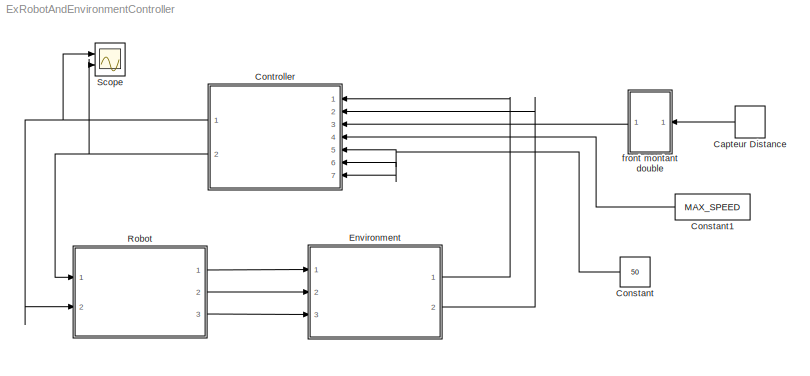
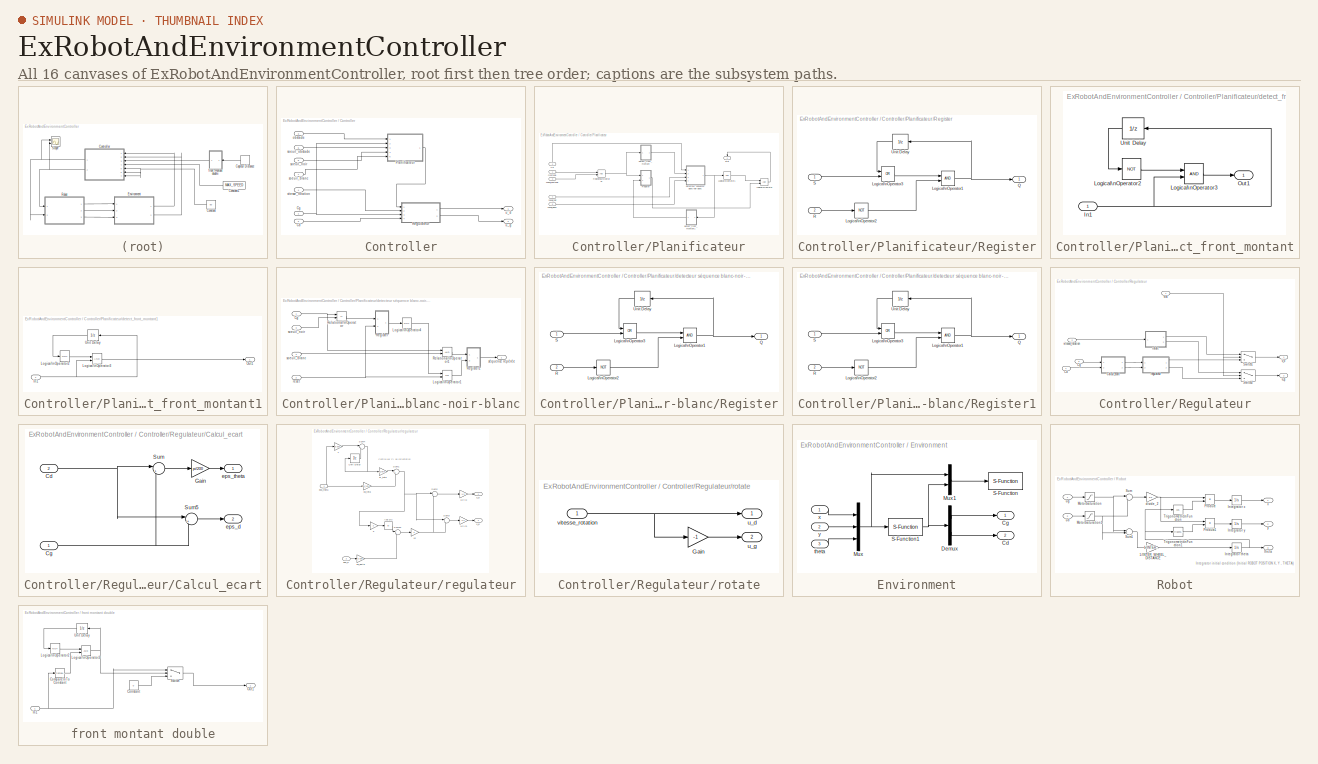
[diagram: thumbnail index - all 16 canvases of the model, root first then tree order]
MODEL ExRobotAndEnvironmentController
KIND model
BLOCK [DiscretePulseGenerator] Capteur Distance
  Amplitude = 100
  Period = 5
  PhaseDelay = 3
  Ports = [0, 1]
  PulseType = Time based
  PulseWidth = 5
  SID = 498
BLOCK [Constant] Constant
  SID = 766
  Value = 50
BLOCK [Constant] Constant1
  SID = 778
  Value = MAX_SPEED
BLOCK [SubSystem] Controller
  Ports = [7, 2]
  RequestExecContextInheritance = off
  SID = 147
BLOCK [Inport] Controller/Cd
  IconDisplay = Port number
  OutDataTypeStr = double
  Port = 2
  SID = 459
BLOCK [Inport] Controller/Cg
  IconDisplay = Port number
  OutDataTypeStr = double
  SID = 458
BLOCK [SubSystem] Controller/Planificateur
  Ports = [5, 1]
  RequestExecContextInheritance = off
  SID = 749
BLOCK [Inport] Controller/Planificateur/Cg
  IconDisplay = Port number
  OutDataTypeStr = double
  Port = 2
  SID = 751
BLOCK [Logic] Controller/Planificateur/Logical\nOperator
  AllPortsSameDT = off
  OutDataTypeStr = boolean
  Ports = [2, 1]
  SID = 680
BLOCK [Logic] Controller/Planificateur/Logical\nOperator1
  AllPortsSameDT = off
  Operator = NOT
  OutDataTypeStr = boolean
  Ports = [1, 1]
  SID = 679
BLOCK [Inport] Controller/Planificateur/Obstacle
  IconDisplay = Port number
  OutDataTypeStr = double
  SID = 750
BLOCK [SubSystem] Controller/Planificateur/Register
  Ports = [2, 1]
  RequestExecContextInheritance = off
  SID = 587
BLOCK [Logic] Controller/Planificateur/Register/Logical\nOperator1
  AllPortsSameDT = off
  OutDataTypeStr = boolean
  Ports = [2, 1]
  SID = 590
BLOCK [Logic] Controller/Planificateur/Register/Logical\nOperator2
  AllPortsSameDT = off
  Operator = NOT
  OutDataTypeStr = boolean
  Ports = [1, 1]
  SID = 591
BLOCK [Logic] Controller/Planificateur/Register/Logical\nOperator3
  AllPortsSameDT = off
  Operator = OR
  OutDataTypeStr = boolean
  Ports = [2, 1]
  SID = 592
BLOCK [Outport] Controller/Planificateur/Register/Q
  IconDisplay = Port number
  SID = 594
BLOCK [Inport] Controller/Planificateur/Register/R
  IconDisplay = Port number
  Port = 2
  SID = 589
BLOCK [Inport] Controller/Planificateur/Register/S
  IconDisplay = Port number
  SID = 588
BLOCK [UnitDelay] Controller/Planificateur/Register/Unit Delay
  InputProcessing = Elements as channels (sample based)
  SID = 593
  SampleTime = -1
BLOCK [RelationalOperator] Controller/Planificateur/Relational\nOperator
  InputSameDT = off
  OutDataTypeStr = boolean
  Ports = [2, 1]
  SID = 761
BLOCK [SubSystem] Controller/Planificateur/detect_front_montant
  Ports = [1, 1]
  RequestExecContextInheritance = off
  SID = 683
BLOCK [Inport] Controller/Planificateur/detect_front_montant/In1
  IconDisplay = Port number
  SID = 684
BLOCK [Logic] Controller/Planificateur/detect_front_montant/Logical\nOperator2
  AllPortsSameDT = off
  Operator = NOT
  OutDataTypeStr = boolean
  Ports = [1, 1]
  SID = 685
BLOCK [Logic] Controller/Planificateur/detect_front_montant/Logical\nOperator3
  AllPortsSameDT = off
  OutDataTypeStr = boolean
  Ports = [2, 1]
  SID = 686
BLOCK [Outport] Controller/Planificateur/detect_front_montant/Out1
  IconDisplay = Port number
  SID = 688
BLOCK [UnitDelay] Controller/Planificateur/detect_front_montant/Unit Delay
  InputProcessing = Elements as channels (sample based)
  SID = 687
  SampleTime = -1
BLOCK [SubSystem] Controller/Planificateur/detect_front_montant1
  Ports = [1, 1]
  RequestExecContextInheritance = off
  SID = 689
BLOCK [Inport] Controller/Planificateur/detect_front_montant1/In1
  IconDisplay = Port number
  SID = 690
BLOCK [Logic] Controller/Planificateur/detect_front_montant1/Logical\nOperator2
  AllPortsSameDT = off
  Operator = NOT
  OutDataTypeStr = boolean
  Ports = [1, 1]
  SID = 691
BLOCK [Logic] Controller/Planificateur/detect_front_montant1/Logical\nOperator3
  AllPortsSameDT = off
  OutDataTypeStr = boolean
  Ports = [2, 1]
  SID = 692
BLOCK [Outport] Controller/Planificateur/detect_front_montant1/Out1
  IconDisplay = Port number
  SID = 694
BLOCK [UnitDelay] Controller/Planificateur/detect_front_montant1/Unit Delay
  InputProcessing = Elements as channels (sample based)
  SID = 693
  SampleTime = -1
BLOCK [SubSystem] Controller/Planificateur/detecteur séquence blanc-noir-blanc
  Ports = [4, 1]
  RequestExecContextInheritance = off
  SID = 642
BLOCK [Inport] Controller/Planificateur/detecteur séquence blanc-noir-blanc/Cg
  IconDisplay = Port number
  SID = 643
BLOCK [Logic] Controller/Planificateur/detecteur séquence blanc-noir-blanc/Logical\nOperator1
  AllPortsSameDT = off
  Operator = OR
  OutDataTypeStr = boolean
  Ports = [2, 1]
  SID = 645
BLOCK [Logic] Controller/Planificateur/detecteur séquence blanc-noir-blanc/Logical\nOperator4
  AllPortsSameDT = off
  Operator = NOT
  OutDataTypeStr = boolean
  Ports = [1, 1]
  SID = 647
BLOCK [SubSystem] Controller/Planificateur/detecteur séquence blanc-noir-blanc/Register
  Ports = [2, 1]
  RequestExecContextInheritance = off
  SID = 701
BLOCK [Logic] Controller/Planificateur/detecteur séquence blanc-noir-blanc/Register/Logical\nOperator1
  AllPortsSameDT = off
  OutDataTypeStr = boolean
  Ports = [2, 1]
  SID = 704
BLOCK [Logic] Controller/Planificateur/detecteur séquence blanc-noir-blanc/Register/Logical\nOperator2
  AllPortsSameDT = off
  Operator = NOT
  OutDataTypeStr = boolean
  Ports = [1, 1]
  SID = 705
BLOCK [Logic] Controller/Planificateur/detecteur séquence blanc-noir-blanc/Register/Logical\nOperator3
  AllPortsSameDT = off
  Operator = OR
  OutDataTypeStr = boolean
  Ports = [2, 1]
  SID = 706
BLOCK [Outport] Controller/Planificateur/detecteur séquence blanc-noir-blanc/Register/Q
  IconDisplay = Port number
  SID = 708
BLOCK [Inport] Controller/Planificateur/detecteur séquence blanc-noir-blanc/Register/R
  IconDisplay = Port number
  OutDataTypeStr = boolean
  Port = 2
  SID = 703
BLOCK [Inport] Controller/Planificateur/detecteur séquence blanc-noir-blanc/Register/S
  IconDisplay = Port number
  OutDataTypeStr = boolean
  SID = 702
BLOCK [UnitDelay] Controller/Planificateur/detecteur séquence blanc-noir-blanc/Register/Unit Delay
  InputProcessing = Elements as channels (sample based)
  SID = 707
  SampleTime = -1
BLOCK [SubSystem] Controller/Planificateur/detecteur séquence blanc-noir-blanc/Register1
  Ports = [2, 1]
  RequestExecContextInheritance = off
  SID = 714
BLOCK [Logic] Controller/Planificateur/detecteur séquence blanc-noir-blanc/Register1/Logical\nOperator1
  AllPortsSameDT = off
  OutDataTypeStr = boolean
  Ports = [2, 1]
  SID = 717
BLOCK [Logic] Controller/Planificateur/detecteur séquence blanc-noir-blanc/Register1/Logical\nOperator2
  AllPortsSameDT = off
  Operator = NOT
  OutDataTypeStr = boolean
  Ports = [1, 1]
  SID = 718
BLOCK [Logic] Controller/Planificateur/detecteur séquence blanc-noir-blanc/Register1/Logical\nOperator3
  AllPortsSameDT = off
  Operator = OR
  OutDataTypeStr = boolean
  Ports = [2, 1]
  SID = 719
BLOCK [Outport] Controller/Planificateur/detecteur séquence blanc-noir-blanc/Register1/Q
  IconDisplay = Port number
  SID = 721
BLOCK [Inport] Controller/Planificateur/detecteur séquence blanc-noir-blanc/Register1/R
  IconDisplay = Port number
  OutDataTypeStr = boolean
  Port = 2
  SID = 716
BLOCK [Inport] Controller/Planificateur/detecteur séquence blanc-noir-blanc/Register1/S
  IconDisplay = Port number
  OutDataTypeStr = boolean
  SID = 715
BLOCK [UnitDelay] Controller/Planificateur/detecteur séquence blanc-noir-blanc/Register1/Unit Delay
  InputProcessing = Elements as channels (sample based)
  SID = 720
  SampleTime = -1
BLOCK [RelationalOperator] Controller/Planificateur/detecteur séquence blanc-noir-blanc/Relational\nOperator
  InputSameDT = off
  Operator = <=
  OutDataTypeStr = boolean
  Ports = [2, 1]
  SID = 764
BLOCK [RelationalOperator] Controller/Planificateur/detecteur séquence blanc-noir-blanc/Relational\nOperator1
  InputSameDT = off
  OutDataTypeStr = boolean
  Ports = [2, 1]
  SID = 765
BLOCK [Inport] Controller/Planificateur/detecteur séquence blanc-noir-blanc/reset
  IconDisplay = Port number
  OutDataTypeStr = boolean
  Port = 2
  SID = 644
BLOCK [Inport] Controller/Planificateur/detecteur séquence blanc-noir-blanc/soeuil_blanc
  IconDisplay = Port number
  Port = 4
  SID = 763
BLOCK [Inport] Controller/Planificateur/detecteur séquence blanc-noir-blanc/soeuil_noir
  IconDisplay = Port number
  Port = 3
  SID = 762
BLOCK [Outport] Controller/Planificateur/detecteur séquence blanc-noir-blanc/séquence repérée
  IconDisplay = Port number
  OutDataTypeStr = boolean
  SID = 676
BLOCK [Outport] Controller/Planificateur/etat
  IconDisplay = Port number
  SID = 752
BLOCK [Inport] Controller/Planificateur/soeuil_blanc
  IconDisplay = Port number
  OutDataTypeStr = double
  Port = 5
  SID = 757
BLOCK [Inport] Controller/Planificateur/soeuil_noir
  IconDisplay = Port number
  OutDataTypeStr = double
  Port = 4
  SID = 756
BLOCK [Inport] Controller/Planificateur/soeuil_obstacle
  IconDisplay = Port number
  OutDataTypeStr = double
  Port = 3
  SID = 755
BLOCK [SubSystem] Controller/Regulateur
  Ports = [4, 2]
  RequestExecContextInheritance = off
  SID = 770
BLOCK [SubSystem] Controller/Regulateur/Calcul_ecart
  Ports = [2, 2]
  RequestExecContextInheritance = off
  SID = 480
BLOCK [Inport] Controller/Regulateur/Calcul_ecart/Cd
  IconDisplay = Port number
  Port = 2
  SID = 483
BLOCK [Inport] Controller/Regulateur/Calcul_ecart/Cg
  IconDisplay = Port number
  SID = 482
BLOCK [Gain] Controller/Regulateur/Calcul_ecart/Gain
  Gain = pi/200
  OutDataTypeStr = Inherit: Inherit via internal rule
  ParamDataTypeStr = Inherit: Inherit via internal rule
  SID = 463
  SaturateOnIntegerOverflow = off
BLOCK [Sum] Controller/Regulateur/Calcul_ecart/Sum
  IconShape = round
  InputSameDT = off
  Inputs = |+-
  OutDataTypeStr = Inherit: Inherit via internal rule
  Ports = [2, 1]
  SID = 464
  SaturateOnIntegerOverflow = off
BLOCK [Sum] Controller/Regulateur/Calcul_ecart/Sum5
  IconShape = round
  InputSameDT = off
  Inputs = |++
  OutDataTypeStr = Inherit: Inherit via internal rule
  Ports = [2, 1]
  SID = 470
  SaturateOnIntegerOverflow = off
BLOCK [Outport] Controller/Regulateur/Calcul_ecart/eps_d
  IconDisplay = Port number
  Port = 2
  SID = 484
BLOCK [Outport] Controller/Regulateur/Calcul_ecart/eps_theta
  IconDisplay = Port number
  SID = 481
BLOCK [Inport] Controller/Regulateur/Cd
  IconDisplay = Port number
  OutDataTypeStr = double
  Port = 4
  SID = 774
BLOCK [Inport] Controller/Regulateur/Cg
  IconDisplay = Port number
  OutDataTypeStr = double
  Port = 3
  SID = 773
BLOCK [Switch] Controller/Regulateur/Switch1
  Criteria = u2 ~= 0
  InputSameDT = off
  SID = 537
  SaturateOnIntegerOverflow = off
BLOCK [Switch] Controller/Regulateur/Switch2
  Criteria = u2 ~= 0
  InputSameDT = off
  SID = 538
  SaturateOnIntegerOverflow = off
BLOCK [Inport] Controller/Regulateur/etat
  IconDisplay = Port number
  OutDataTypeStr = boolean
  SID = 771
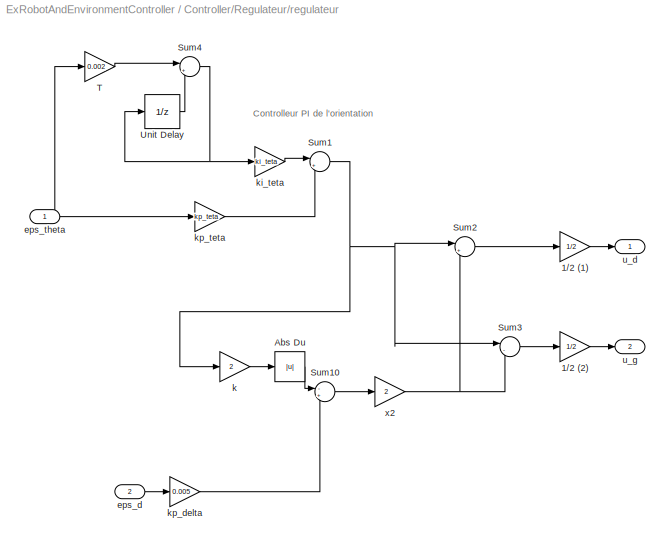
BLOCK [SubSystem] Controller/Regulateur/regulateur
  Ports = [2, 2]
  RequestExecContextInheritance = off
  SID = 485
BLOCK [Gain] Controller/Regulateur/regulateur/1//2  (1)
  Gain = 1/2
  SID = 460
BLOCK [Gain] Controller/Regulateur/regulateur/1//2 (2)
  Gain = 1/2
  SID = 461
BLOCK [Abs] Controller/Regulateur/regulateur/Abs Du
  SID = 462
BLOCK [Sum] Controller/Regulateur/regulateur/Sum1
  IconShape = round
  InputSameDT = off
  Inputs = |++
  OutDataTypeStr = Inherit: Inherit via internal rule
  Ports = [2, 1]
  SID = 465
BLOCK [Sum] Controller/Regulateur/regulateur/Sum10
  IconShape = round
  InputSameDT = off
  Inputs = -+
  OutDataTypeStr = Inherit: Inherit via internal rule
  Ports = [2, 1]
  SID = 466
BLOCK [Sum] Controller/Regulateur/regulateur/Sum2
  IconShape = round
  InputSameDT = off
  Inputs = |++
  OutDataTypeStr = Inherit: Inherit via internal rule
  Ports = [2, 1]
  SID = 467
BLOCK [Sum] Controller/Regulateur/regulateur/Sum3
  IconShape = round
  InputSameDT = off
  Inputs = |-+
  OutDataTypeStr = Inherit: Inherit via internal rule
  Ports = [2, 1]
  SID = 468
BLOCK [Sum] Controller/Regulateur/regulateur/Sum4
  IconShape = round
  InputSameDT = off
  Inputs = |++
  OutDataTypeStr = Inherit: Inherit via internal rule
  Ports = [2, 1]
  SID = 469
  SaturateOnIntegerOverflow = off
BLOCK [Gain] Controller/Regulateur/regulateur/T
  Gain = 0.002
  OutDataTypeStr = Inherit: Inherit via internal rule
  ParamDataTypeStr = Inherit: Inherit via internal rule
  SID = 471
  SaturateOnIntegerOverflow = off
BLOCK [UnitDelay] Controller/Regulateur/regulateur/Unit Delay
  SID = 472
  SampleTime = -1
BLOCK [Inport] Controller/Regulateur/regulateur/eps_d
  IconDisplay = Port number
  Port = 2
  SID = 489
BLOCK [Inport] Controller/Regulateur/regulateur/eps_theta
  IconDisplay = Port number
  SID = 487
BLOCK [Gain] Controller/Regulateur/regulateur/k
  Gain = 2
  SID = 473
BLOCK [Gain] Controller/Regulateur/regulateur/ki_teta
  Gain = ki_teta
  SID = 474
BLOCK [Gain] Controller/Regulateur/regulateur/kp_delta
  Gain = 0.005
  OutDataTypeStr = Inherit: Inherit via internal rule
  ParamDataTypeStr = Inherit: Inherit via internal rule
  SID = 475
  SaturateOnIntegerOverflow = off
BLOCK [Gain] Controller/Regulateur/regulateur/kp_teta
  Gain = kp_teta
  SID = 476
BLOCK [Outport] Controller/Regulateur/regulateur/u_d
  IconDisplay = Port number
  SID = 486
BLOCK [Outport] Controller/Regulateur/regulateur/u_g
  IconDisplay = Port number
  Port = 2
  SID = 488
BLOCK [Gain] Controller/Regulateur/regulateur/x2
  Gain = 2
  SID = 477
BLOCK [SubSystem] Controller/Regulateur/rotate
  Ports = [1, 2]
  RequestExecContextInheritance = off
  SID = 553
BLOCK [Gain] Controller/Regulateur/rotate/Gain
  Gain = -1
  OutDataTypeStr = Inherit: Inherit via internal rule
  ParamDataTypeStr = Inherit: Inherit via internal rule
  SID = 560
  SaturateOnIntegerOverflow = off
BLOCK [Outport] Controller/Regulateur/rotate/u_d
  IconDisplay = Port number
  SID = 555
BLOCK [Outport] Controller/Regulateur/rotate/u_g
  IconDisplay = Port number
  Port = 2
  SID = 557
BLOCK [Inport] Controller/Regulateur/rotate/vitesse_rotation
  IconDisplay = Port number
  SID = 753
BLOCK [Outport] Controller/Regulateur/u_d
  IconDisplay = Port number
  SID = 775
BLOCK [Outport] Controller/Regulateur/u_g
  IconDisplay = Port number
  Port = 2
  SID = 776
BLOCK [Inport] Controller/Regulateur/vitesse_rotation
  IconDisplay = Port number
  OutDataTypeStr = double
  Port = 2
  SID = 772
BLOCK [Inport] Controller/obstacle
  IconDisplay = Port number
  OutDataTypeStr = double
  Port = 3
  SID = 534
BLOCK [Inport] Controller/soeuil_blanc
  IconDisplay = Port number
  OutDataTypeStr = double
  Port = 7
  SID = 760
BLOCK [Inport] Controller/soeuil_noir
  IconDisplay = Port number
  OutDataTypeStr = double
  Port = 6
  SID = 759
BLOCK [Inport] Controller/soeuil_obstacle
  IconDisplay = Port number
  OutDataTypeStr = double
  Port = 5
  SID = 758
BLOCK [Outport] Controller/u_d
  IconDisplay = Port number
  SID = 478
BLOCK [Outport] Controller/u_g
  IconDisplay = Port number
  Port = 2
  SID = 479
BLOCK [Inport] Controller/vitesse_rotation
  IconDisplay = Port number
  OutDataTypeStr = double
  Port = 4
  SID = 754
BLOCK [SubSystem] Environment
  Ports = [3, 2]
  RequestExecContextInheritance = off
  SID = 192
BLOCK [Outport] Environment/Cd
  IconDisplay = Port number
  Port = 2
  SID = 222
BLOCK [Outport] Environment/Cg
  IconDisplay = Port number
  SID = 221
BLOCK [Demux] Environment/Demux
  DisplayOption = bar
  Outputs = 2
  Ports = [1, 2]
  SID = 224
BLOCK [Mux] Environment/Mux
  DisplayOption = bar
  Inputs = 3
  Ports = [3, 1]
  SID = 225
BLOCK [Mux] Environment/Mux1
  DisplayOption = bar
  Inputs = 2
  Ports = [2, 1]
  SID = 226
BLOCK [S-Function] Environment/S-Function
  EnableBusSupport = off
  FunctionName = robot_anim
  Parameters = ts_anim,Env,Robot,RobotInit
  Ports = [1]
  SID = 227
BLOCK [S-Function] Environment/S-Function1
  EnableBusSupport = off
  FunctionName = sensors
  Parameters = ts,Env,Robot
  Ports = [1, 1]
  SID = 228
BLOCK [Inport] Environment/theta
  IconDisplay = Port number
  Port = 3
  SID = 223
BLOCK [Inport] Environment/x
  IconDisplay = Port number
  SID = 193
BLOCK [Inport] Environment/y
  IconDisplay = Port number
  Port = 2
  SID = 194
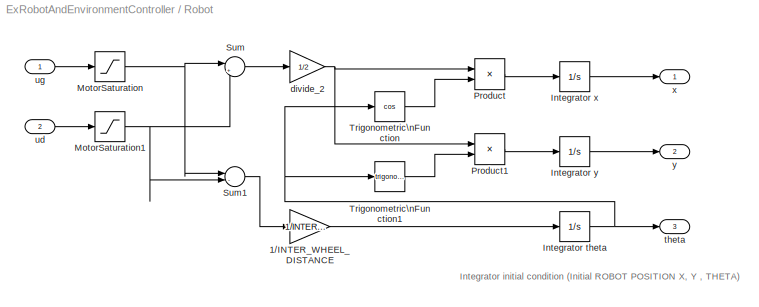
BLOCK [SubSystem] Robot
  Ports = [2, 3]
  RequestExecContextInheritance = off
  SID = 337
BLOCK [Gain] Robot/1//INTER_WHEEL_DISTANCE
  Gain = 1/INTER_WHEEL_DISTANCE
  OutDataTypeStr = Inherit: Inherit via internal rule
  ParamDataTypeStr = Inherit: Inherit via internal rule
  SID = 340
  SaturateOnIntegerOverflow = off
BLOCK [Integrator] Robot/Integrator theta
  InitialCondition = INITIAL_ROBOT_POS_THETA
  Ports = [1, 1]
  SID = 341
BLOCK [Integrator] Robot/Integrator x
  InitialCondition = INITIAL_ROBOT_POS_X
  Ports = [1, 1]
  SID = 342
BLOCK [Integrator] Robot/Integrator y
  InitialCondition = INITIAL_ROBOT_POS_Y
  Ports = [1, 1]
  SID = 343
BLOCK [Saturate] Robot/MotorSaturation
  InputPortMap = u0
  LowerLimit = -MAX_SPEED
  Ports = [1, 1]
  SID = 344
  UpperLimit = MAX_SPEED
BLOCK [Saturate] Robot/MotorSaturation1
  InputPortMap = u0
  LowerLimit = -MAX_SPEED
  Ports = [1, 1]
  SID = 345
  UpperLimit = MAX_SPEED
BLOCK [Product] Robot/Product
  InputSameDT = off
  OutDataTypeStr = Inherit: Inherit via internal rule
  Ports = [2, 1]
  SID = 346
  SaturateOnIntegerOverflow = off
BLOCK [Product] Robot/Product1
  InputSameDT = off
  OutDataTypeStr = Inherit: Inherit via internal rule
  Ports = [2, 1]
  SID = 347
  SaturateOnIntegerOverflow = off
BLOCK [Sum] Robot/Sum
  IconShape = round
  InputSameDT = off
  Inputs = |++
  OutDataTypeStr = Inherit: Inherit via internal rule
  Ports = [2, 1]
  SID = 348
  SaturateOnIntegerOverflow = off
BLOCK [Sum] Robot/Sum1
  IconShape = round
  InputSameDT = off
  Inputs = |-+
  OutDataTypeStr = Inherit: Inherit via internal rule
  Ports = [2, 1]
  SID = 349
  SaturateOnIntegerOverflow = off
BLOCK [Trigonometry] Robot/Trigonometric\nFunction
  Operator = cos
  Ports = [1, 1]
  SID = 350
BLOCK [Trigonometry] Robot/Trigonometric\nFunction1
  Ports = [1, 1]
  SID = 351
BLOCK [Gain] Robot/divide_2
  Gain = 1/2
  OutDataTypeStr = Inherit: Inherit via internal rule
  ParamDataTypeStr = Inherit: Inherit via internal rule
  SID = 352
  SaturateOnIntegerOverflow = off
BLOCK [Outport] Robot/theta
  IconDisplay = Port number
  Port = 3
  SID = 355
BLOCK [Inport] Robot/ud
  IconDisplay = Port number
  Port = 2
  SID = 339
BLOCK [Inport] Robot/ug
  IconDisplay = Port number
  SID = 338
BLOCK [Outport] Robot/x
  IconDisplay = Port number
  SID = 353
BLOCK [Outport] Robot/y
  IconDisplay = Port number
  Port = 2
  SID = 354
BLOCK [Scope] Scope
  Floating = off
  NumInputPorts = 2
  Ports = [2]
  SID = 777
  ShowLegends = off
  YMax = 1~1
  YMin = 0~0
BLOCK [SubSystem] front montant double
  Ports = [1, 1]
  RequestExecContextInheritance = off
  SID = 735
BLOCK [Reference] front montant double/Compare\nTo Constant  REF=simulink/Logic and Bit\nOperations/Compare\nTo Constant
  OutDataTypeStr = boolean
  Ports = [1, 1]
  SID = 742
  SourceBlock = simulink/Logic and Bit\nOperations/Compare\nTo Constant
  SourceType = Compare To Constant
  ZeroCross = on
  const = 50
  relop = >
BLOCK [Constant] front montant double/Constant
  SID = 744
  Value = 0
BLOCK [Inport] front montant double/In1
  IconDisplay = Port number
  SID = 736
BLOCK [Logic] front montant double/Logical\nOperator2
  AllPortsSameDT = off
  Operator = NOT
  OutDataTypeStr = boolean
  Ports = [1, 1]
  SID = 737
BLOCK [Logic] front montant double/Logical\nOperator3
  AllPortsSameDT = off
  OutDataTypeStr = boolean
  Ports = [2, 1]
  SID = 738
BLOCK [Outport] front montant double/Out1
  IconDisplay = Port number
  OutDataTypeStr = double
  SID = 740
BLOCK [Switch] front montant double/Switch
  Criteria = u2 ~= 0
  InputSameDT = off
  SID = 743
  SaturateOnIntegerOverflow = off
BLOCK [UnitDelay] front montant double/Unit Delay
  InputProcessing = Elements as channels (sample based)
  SID = 739
  SampleTime = -1
ANNOTATION Controller/Regulateur/regulateur: Controlleur PI de l'orientation
ANNOTATION Robot: Integrator initial condition (Initial ROBOT POSITION X, Y , THETA)
LINE Capteur Distance:1 -> front montant double:1
LINE Constant1:1 -> Controller:4
NET Constant:1 -> Controller:5, Controller:6, Controller:7
LINE Controller/Cd:1 -> Controller/Regulateur:4
NET Controller/Cg:1 -> Controller/Planificateur:2, Controller/Regulateur:3
LINE Controller/Planificateur/Cg:1 -> Controller/Planificateur/detecteur séquence blanc-noir-blanc:1
LINE Controller/Planificateur/Logical\nOperator1:1 -> Controller/Planificateur/Logical\nOperator:1
LINE Controller/Planificateur/Logical\nOperator:1 -> Controller/Planificateur/etat:1
LINE Controller/Planificateur/Obstacle:1 -> Controller/Planificateur/Relational\nOperator:1
NET Controller/Planificateur/Register/Logical\nOperator1:1 -> Controller/Planificateur/Register/Q:1, Controller/Planificateur/Register/Unit Delay:1
LINE Controller/Planificateur/Register/Logical\nOperator2:1 -> Controller/Planificateur/Register/Logical\nOperator1:2
LINE Controller/Planificateur/Register/Logical\nOperator3:1 -> Controller/Planificateur/Register/Logical\nOperator1:1
LINE Controller/Planificateur/Register/R:1 -> Controller/Planificateur/Register/Logical\nOperator2:1
LINE Controller/Planificateur/Register/S:1 -> Controller/Planificateur/Register/Logical\nOperator3:2
LINE Controller/Planificateur/Register/Unit Delay:1 -> Controller/Planificateur/Register/Logical\nOperator3:1
LINE Controller/Planificateur/Register:1 -> Controller/Planificateur/Logical\nOperator:2
NET Controller/Planificateur/Relational\nOperator:1 -> Controller/Planificateur/Register:1, Controller/Planificateur/detect_front_montant:1
NET Controller/Planificateur/detect_front_montant/In1:1 -> Controller/Planificateur/detect_front_montant/Logical\nOperator3:2, Controller/Planificateur/detect_front_montant/Unit Delay:1
LINE Controller/Planificateur/detect_front_montant/Logical\nOperator2:1 -> Controller/Planificateur/detect_front_montant/Logical\nOperator3:1
LINE Controller/Planificateur/detect_front_montant/Logical\nOperator3:1 -> Controller/Planificateur/detect_front_montant/Out1:1
LINE Controller/Planificateur/detect_front_montant/Unit Delay:1 -> Controller/Planificateur/detect_front_montant/Logical\nOperator2:1
NET Controller/Planificateur/detect_front_montant1/In1:1 -> Controller/Planificateur/detect_front_montant1/Logical\nOperator3:2, Controller/Planificateur/detect_front_montant1/Unit Delay:1
LINE Controller/Planificateur/detect_front_montant1/Logical\nOperator2:1 -> Controller/Planificateur/detect_front_montant1/Logical\nOperator3:1
LINE Controller/Planificateur/detect_front_montant1/Logical\nOperator3:1 -> Controller/Planificateur/detect_front_montant1/Out1:1
LINE Controller/Planificateur/detect_front_montant1/Unit Delay:1 -> Controller/Planificateur/detect_front_montant1/Logical\nOperator2:1
LINE Controller/Planificateur/detect_front_montant1:1 -> Controller/Planificateur/Register:2
LINE Controller/Planificateur/detect_front_montant:1 -> Controller/Planificateur/detecteur séquence blanc-noir-blanc:2
NET Controller/Planificateur/detecteur séquence blanc-noir-blanc/Cg:1 -> Controller/Planificateur/detecteur séquence blanc-noir-blanc/Relational\nOperator1:1, Controller/Planificateur/detecteur séquence blanc-noir-blanc/Relational\nOperator:1
LINE Controller/Planificateur/detecteur séquence blanc-noir-blanc/Logical\nOperator1:1 -> Controller/Planificateur/detecteur séquence blanc-noir-blanc/Register1:2
LINE Controller/Planificateur/detecteur séquence blanc-noir-blanc/Logical\nOperator4:1 -> Controller/Planificateur/detecteur séquence blanc-noir-blanc/Logical\nOperator1:1
NET Controller/Planificateur/detecteur séquence blanc-noir-blanc/Register/Logical\nOperator1:1 -> Controller/Planificateur/detecteur séquence blanc-noir-blanc/Register/Q:1, Controller/Planificateur/detecteur séquence blanc-noir-blanc/Register/Unit Delay:1
LINE Controller/Planificateur/detecteur séquence blanc-noir-blanc/Register/Logical\nOperator2:1 -> Controller/Planificateur/detecteur séquence blanc-noir-blanc/Register/Logical\nOperator1:2
LINE Controller/Planificateur/detecteur séquence blanc-noir-blanc/Register/Logical\nOperator3:1 -> Controller/Planificateur/detecteur séquence blanc-noir-blanc/Register/Logical\nOperator1:1
LINE Controller/Planificateur/detecteur séquence blanc-noir-blanc/Register/R:1 -> Controller/Planificateur/detecteur séquence blanc-noir-blanc/Register/Logical\nOperator2:1
LINE Controller/Planificateur/detecteur séquence blanc-noir-blanc/Register/S:1 -> Controller/Planificateur/detecteur séquence blanc-noir-blanc/Register/Logical\nOperator3:2
LINE Controller/Planificateur/detecteur séquence blanc-noir-blanc/Register/Unit Delay:1 -> Controller/Planificateur/detecteur séquence blanc-noir-blanc/Register/Logical\nOperator3:1
NET Controller/Planificateur/detecteur séquence blanc-noir-blanc/Register1/Logical\nOperator1:1 -> Controller/Planificateur/detecteur séquence blanc-noir-blanc/Register1/Q:1, Controller/Planificateur/detecteur séquence blanc-noir-blanc/Register1/Unit Delay:1
LINE Controller/Planificateur/detecteur séquence blanc-noir-blanc/Register1/Logical\nOperator2:1 -> Controller/Planificateur/detecteur séquence blanc-noir-blanc/Register1/Logical\nOperator1:2
LINE Controller/Planificateur/detecteur séquence blanc-noir-blanc/Register1/Logical\nOperator3:1 -> Controller/Planificateur/detecteur séquence blanc-noir-blanc/Register1/Logical\nOperator1:1
LINE Controller/Planificateur/detecteur séquence blanc-noir-blanc/Register1/R:1 -> Controller/Planificateur/detecteur séquence blanc-noir-blanc/Register1/Logical\nOperator2:1
LINE Controller/Planificateur/detecteur séquence blanc-noir-blanc/Register1/S:1 -> Controller/Planificateur/detecteur séquence blanc-noir-blanc/Register1/Logical\nOperator3:2
LINE Controller/Planificateur/detecteur séquence blanc-noir-blanc/Register1/Unit Delay:1 -> Controller/Planificateur/detecteur séquence blanc-noir-blanc/Register1/Logical\nOperator3:1
LINE Controller/Planificateur/detecteur séquence blanc-noir-blanc/Register1:1 -> Controller/Planificateur/detecteur séquence blanc-noir-blanc/séquence repérée:1
LINE Controller/Planificateur/detecteur séquence blanc-noir-blanc/Register:1 -> Controller/Planificateur/detecteur séquence blanc-noir-blanc/Logical\nOperator4:1
LINE Controller/Planificateur/detecteur séquence blanc-noir-blanc/Relational\nOperator1:1 -> Controller/Planificateur/detecteur séquence blanc-noir-blanc/Register1:1
LINE Controller/Planificateur/detecteur séquence blanc-noir-blanc/Relational\nOperator:1 -> Controller/Planificateur/detecteur séquence blanc-noir-blanc/Register:1
NET Controller/Planificateur/detecteur séquence blanc-noir-blanc/reset:1 -> Controller/Planificateur/detecteur séquence blanc-noir-blanc/Logical\nOperator1:2, Controller/Planificateur/detecteur séquence blanc-noir-blanc/Register:2
LINE Controller/Planificateur/detecteur séquence blanc-noir-blanc/soeuil_blanc:1 -> Controller/Planificateur/detecteur séquence blanc-noir-blanc/Relational\nOperator1:2
LINE Controller/Planificateur/detecteur séquence blanc-noir-blanc/soeuil_noir:1 -> Controller/Planificateur/detecteur séquence blanc-noir-blanc/Relational\nOperator:2
NET Controller/Planificateur/detecteur séquence blanc-noir-blanc:1 -> Controller/Planificateur/Logical\nOperator1:1, Controller/Planificateur/detect_front_montant1:1
LINE Controller/Planificateur/soeuil_blanc:1 -> Controller/Planificateur/detecteur séquence blanc-noir-blanc:4
LINE Controller/Planificateur/soeuil_noir:1 -> Controller/Planificateur/detecteur séquence blanc-noir-blanc:3
LINE Controller/Planificateur/soeuil_obstacle:1 -> Controller/Planificateur/Relational\nOperator:2
LINE Controller/Planificateur:1 -> Controller/Regulateur:1
NET Controller/Regulateur/Calcul_ecart/Cd:1 -> Controller/Regulateur/Calcul_ecart/Sum5:1, Controller/Regulateur/Calcul_ecart/Sum:1
NET Controller/Regulateur/Calcul_ecart/Cg:1 -> Controller/Regulateur/Calcul_ecart/Sum5:2, Controller/Regulateur/Calcul_ecart/Sum:2
LINE Controller/Regulateur/Calcul_ecart/Gain:1 -> Controller/Regulateur/Calcul_ecart/eps_theta:1
LINE Controller/Regulateur/Calcul_ecart/Sum5:1 -> Controller/Regulateur/Calcul_ecart/eps_d:1
LINE Controller/Regulateur/Calcul_ecart/Sum:1 -> Controller/Regulateur/Calcul_ecart/Gain:1
LINE Controller/Regulateur/Calcul_ecart:1 -> Controller/Regulateur/regulateur:1
LINE Controller/Regulateur/Calcul_ecart:2 -> Controller/Regulateur/regulateur:2
LINE Controller/Regulateur/Cd:1 -> Controller/Regulateur/Calcul_ecart:2
LINE Controller/Regulateur/Cg:1 -> Controller/Regulateur/Calcul_ecart:1
LINE Controller/Regulateur/Switch1:1 -> Controller/Regulateur/u_d:1
LINE Controller/Regulateur/Switch2:1 -> Controller/Regulateur/u_g:1
NET Controller/Regulateur/etat:1 -> Controller/Regulateur/Switch1:2, Controller/Regulateur/Switch2:2
LINE Controller/Regulateur/regulateur/1//2  (1):1 -> Controller/Regulateur/regulateur/u_d:1
LINE Controller/Regulateur/regulateur/1//2 (2):1 -> Controller/Regulateur/regulateur/u_g:1
LINE Controller/Regulateur/regulateur/Abs Du:1 -> Controller/Regulateur/regulateur/Sum10:1
LINE Controller/Regulateur/regulateur/Sum10:1 -> Controller/Regulateur/regulateur/x2:1
NET Controller/Regulateur/regulateur/Sum1:1 -> Controller/Regulateur/regulateur/Sum2:1, Controller/Regulateur/regulateur/Sum3:1, Controller/Regulateur/regulateur/k:1
LINE Controller/Regulateur/regulateur/Sum2:1 -> Controller/Regulateur/regulateur/1//2  (1):1
LINE Controller/Regulateur/regulateur/Sum3:1 -> Controller/Regulateur/regulateur/1//2 (2):1
NET Controller/Regulateur/regulateur/Sum4:1 -> Controller/Regulateur/regulateur/Unit Delay:1, Controller/Regulateur/regulateur/ki_teta:1
LINE Controller/Regulateur/regulateur/T:1 -> Controller/Regulateur/regulateur/Sum4:1
LINE Controller/Regulateur/regulateur/Unit Delay:1 -> Controller/Regulateur/regulateur/Sum4:2
LINE Controller/Regulateur/regulateur/eps_d:1 -> Controller/Regulateur/regulateur/kp_delta:1
NET Controller/Regulateur/regulateur/eps_theta:1 -> Controller/Regulateur/regulateur/T:1, Controller/Regulateur/regulateur/kp_teta:1
LINE Controller/Regulateur/regulateur/k:1 -> Controller/Regulateur/regulateur/Abs Du:1
LINE Controller/Regulateur/regulateur/ki_teta:1 -> Controller/Regulateur/regulateur/Sum1:1
LINE Controller/Regulateur/regulateur/kp_delta:1 -> Controller/Regulateur/regulateur/Sum10:2
LINE Controller/Regulateur/regulateur/kp_teta:1 -> Controller/Regulateur/regulateur/Sum1:2
NET Controller/Regulateur/regulateur/x2:1 -> Controller/Regulateur/regulateur/Sum2:2, Controller/Regulateur/regulateur/Sum3:2
LINE Controller/Regulateur/regulateur:1 -> Controller/Regulateur/Switch1:3
LINE Controller/Regulateur/regulateur:2 -> Controller/Regulateur/Switch2:3
LINE Controller/Regulateur/rotate/Gain:1 -> Controller/Regulateur/rotate/u_g:1
NET Controller/Regulateur/rotate/vitesse_rotation:1 -> Controller/Regulateur/rotate/Gain:1, Controller/Regulateur/rotate/u_d:1
LINE Controller/Regulateur/rotate:1 -> Controller/Regulateur/Switch1:1
LINE Controller/Regulateur/rotate:2 -> Controller/Regulateur/Switch2:1
LINE Controller/Regulateur/vitesse_rotation:1 -> Controller/Regulateur/rotate:1
LINE Controller/Regulateur:1 -> Controller/u_d:1
LINE Controller/Regulateur:2 -> Controller/u_g:1
LINE Controller/obstacle:1 -> Controller/Planificateur:1
LINE Controller/soeuil_blanc:1 -> Controller/Planificateur:5
LINE Controller/soeuil_noir:1 -> Controller/Planificateur:4
LINE Controller/soeuil_obstacle:1 -> Controller/Planificateur:3
LINE Controller/vitesse_rotation:1 -> Controller/Regulateur:2
NET Controller:1 -> Robot:2, Scope:1
NET Controller:2 -> Robot:1, Scope:2
LINE Environment/Demux:1 -> Environment/Cg:1
LINE Environment/Demux:2 -> Environment/Cd:1
LINE Environment/Mux1:1 -> Environment/S-Function:1
NET Environment/Mux:1 -> Environment/Mux1:1, Environment/S-Function1:1
NET Environment/S-Function1:1 -> Environment/Demux:1, Environment/Mux1:2
LINE Environment/theta:1 -> Environment/Mux:3
LINE Environment/x:1 -> Environment/Mux:1
LINE Environment/y:1 -> Environment/Mux:2
LINE Environment:1 -> Controller:1
LINE Environment:2 -> Controller:2
LINE Robot/1//INTER_WHEEL_DISTANCE:1 -> Robot/Integrator theta:1
NET Robot/Integrator theta:1 -> Robot/Trigonometric\nFunction1:1, Robot/Trigonometric\nFunction:1, Robot/theta:1
LINE Robot/Integrator x:1 -> Robot/x:1
LINE Robot/Integrator y:1 -> Robot/y:1
NET Robot/MotorSaturation1:1 -> Robot/Sum1:2, Robot/Sum:2
NET Robot/MotorSaturation:1 -> Robot/Sum1:1, Robot/Sum:1
LINE Robot/Product1:1 -> Robot/Integrator y:1
LINE Robot/Product:1 -> Robot/Integrator x:1
LINE Robot/Sum1:1 -> Robot/1//INTER_WHEEL_DISTANCE:1
LINE Robot/Sum:1 -> Robot/divide_2:1
LINE Robot/Trigonometric\nFunction1:1 -> Robot/Product1:2
LINE Robot/Trigonometric\nFunction:1 -> Robot/Product:2
NET Robot/divide_2:1 -> Robot/Product1:1, Robot/Product:1
LINE Robot/ud:1 -> Robot/MotorSaturation1:1
LINE Robot/ug:1 -> Robot/MotorSaturation:1
LINE Robot:1 -> Environment:1
LINE Robot:2 -> Environment:2
LINE Robot:3 -> Environment:3
LINE front montant double/Compare\nTo Constant:1 -> front montant double/Logical\nOperator3:2
LINE front montant double/Constant:1 -> front montant double/Switch:3
NET front montant double/In1:1 -> front montant double/Compare\nTo Constant:1, front montant double/Switch:1
LINE front montant double/Logical\nOperator2:1 -> front montant double/Logical\nOperator3:1
NET front montant double/Logical\nOperator3:1 -> front montant double/Switch:2, front montant double/Unit Delay:1
LINE front montant double/Switch:1 -> front montant double/Out1:1
LINE front montant double/Unit Delay:1 -> front montant double/Logical\nOperator2:1
LINE front montant double:1 -> Controller:3
note: NET lines group one-source signal fan-out (src -> all destinations, sorted); 1:1 wires keep LINE
